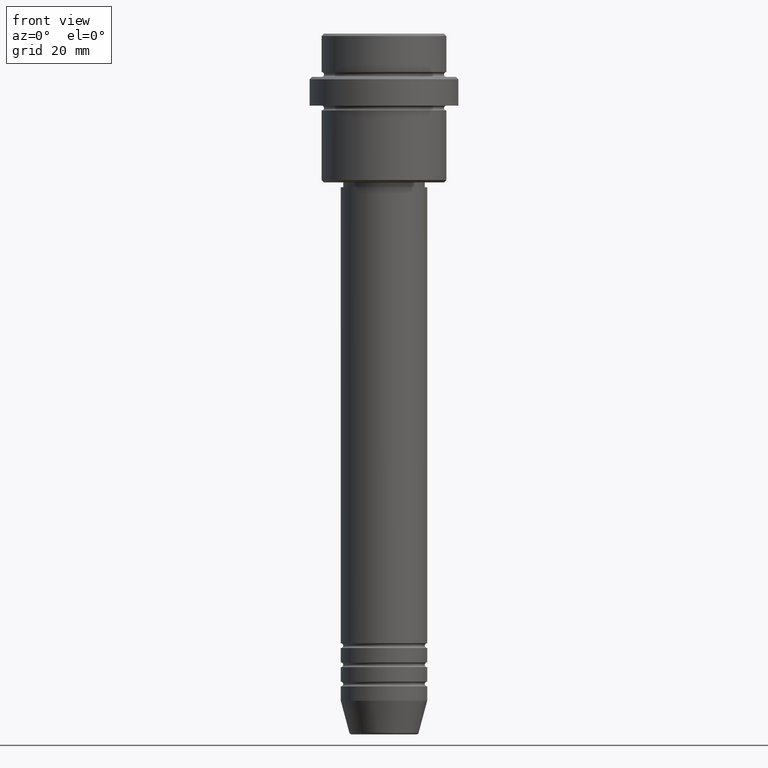
[diagram: clean part render]
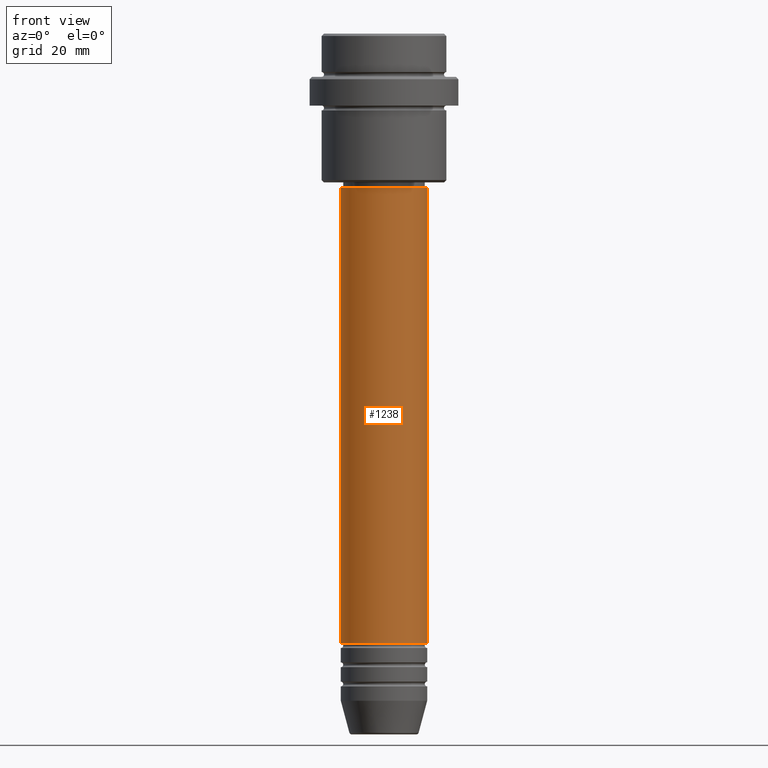
[diagram: same view with one face highlighted and labeled with its STEP entity id]
A machine part, front view. The second image highlights one B-rep face of the part: STEP entity #1238.
In plain terms, the highlighted cylindrical surface (partial cylindrical patch) has radius 9 mm, axis along (-0, -0, 1).
Its self-contained STEP definition (entity closure, byte-faithful):
#49 = LINE ( 'NONE', #915, #649 ) ;
#107 = CARTESIAN_POINT ( 'NONE',  ( 0.000000000000000000, 0.000000000000000000, -32.00000000000000000 ) ) ;
#129 = VERTEX_POINT ( 'NONE', #602 ) ;
#140 = CARTESIAN_POINT ( 'NONE',  ( -9.000000000000000000, 1.102182119232617714E-15, -126.9999999999998863 ) ) ;
#150 = CIRCLE ( 'NONE', #1176, 9.000000000000001776 ) ;
#165 = DIRECTION ( 'NONE',  ( -0.000000000000000000, -0.000000000000000000, 1.000000000000000000 ) ) ;
#205 = CIRCLE ( 'NONE', #956, 9.000000000000000000 ) ;
#212 = DIRECTION ( 'NONE',  ( 1.000000000000000000, 0.000000000000000000, 0.000000000000000000 ) ) ;
#267 = DIRECTION ( 'NONE',  ( -0.000000000000000000, -0.000000000000000000, 1.000000000000000000 ) ) ;
#333 = DIRECTION ( 'NONE',  ( -0.000000000000000000, -0.000000000000000000, 1.000000000000000000 ) ) ;
#349 = FACE_OUTER_BOUND ( 'NONE', #1106, .T. ) ;
#443 = CARTESIAN_POINT ( 'NONE',  ( 9.000000000000001776, 0.000000000000000000, 0.000000000000000000 ) ) ;
#456 = DIRECTION ( 'NONE',  ( 1.000000000000000000, 0.000000000000000000, 0.000000000000000000 ) ) ;
#502 = ORIENTED_EDGE ( 'NONE', *, *, #1055, .F. ) ;
#583 = ORIENTED_EDGE ( 'NONE', *, *, #1218, .F. ) ;
#602 = CARTESIAN_POINT ( 'NONE',  ( 9.000000000000000000, 0.000000000000000000, -126.9999999999998863 ) ) ;
#619 = VERTEX_POINT ( 'NONE', #140 ) ;
#649 = VECTOR ( 'NONE', #267, 1000.000000000000000 ) ;
#702 = AXIS2_PLACEMENT_3D ( 'NONE', #999, #333, #456 ) ;
#712 = CARTESIAN_POINT ( 'NONE',  ( 0.000000000000000000, 0.000000000000000000, -126.9999999999998863 ) ) ;
#802 = CARTESIAN_POINT ( 'NONE',  ( 9.000000000000001776, 0.000000000000000000, -32.00000000000000000 ) ) ;
#834 = EDGE_CURVE ( 'NONE', #129, #1027, #992, .T. ) ;
#905 = ORIENTED_EDGE ( 'NONE', *, *, #834, .T. ) ;
#915 = CARTESIAN_POINT ( 'NONE',  ( -9.000000000000001776, 1.102182119232617911E-15, 0.000000000000000000 ) ) ;
#956 = AXIS2_PLACEMENT_3D ( 'NONE', #712, #165, #1050 ) ;
#992 = LINE ( 'NONE', #443, #1129 ) ;
#999 = CARTESIAN_POINT ( 'NONE',  ( 0.000000000000000000, 0.000000000000000000, 0.000000000000000000 ) ) ;
#1027 = VERTEX_POINT ( 'NONE', #802 ) ;
#1050 = DIRECTION ( 'NONE',  ( 1.000000000000000000, 0.000000000000000000, 0.000000000000000000 ) ) ;
#1055 = EDGE_CURVE ( 'NONE', #619, #1136, #49, .T. ) ;
#1063 = EDGE_CURVE ( 'NONE', #619, #129, #205, .T. ) ;
#1066 = ORIENTED_EDGE ( 'NONE', *, *, #1063, .T. ) ;
#1076 = DIRECTION ( 'NONE',  ( -0.000000000000000000, -0.000000000000000000, 1.000000000000000000 ) ) ;
#1106 = EDGE_LOOP ( 'NONE', ( #502, #1066, #905, #583 ) ) ;
#1129 = VECTOR ( 'NONE', #1204, 1000.000000000000000 ) ;
#1136 = VERTEX_POINT ( 'NONE', #1330 ) ;
#1176 = AXIS2_PLACEMENT_3D ( 'NONE', #107, #1076, #212 ) ;
#1204 = DIRECTION ( 'NONE',  ( -0.000000000000000000, -0.000000000000000000, 1.000000000000000000 ) ) ;
#1218 = EDGE_CURVE ( 'NONE', #1136, #1027, #150, .T. ) ;
#1238 = ADVANCED_FACE ( 'NONE', ( #349 ), #1308, .T. ) ;
#1308 = CYLINDRICAL_SURFACE ( 'NONE', #702, 9.000000000000001776 ) ;
#1330 = CARTESIAN_POINT ( 'NONE',  ( -9.000000000000001776, 1.102182119232617911E-15, -32.00000000000000000 ) ) ;